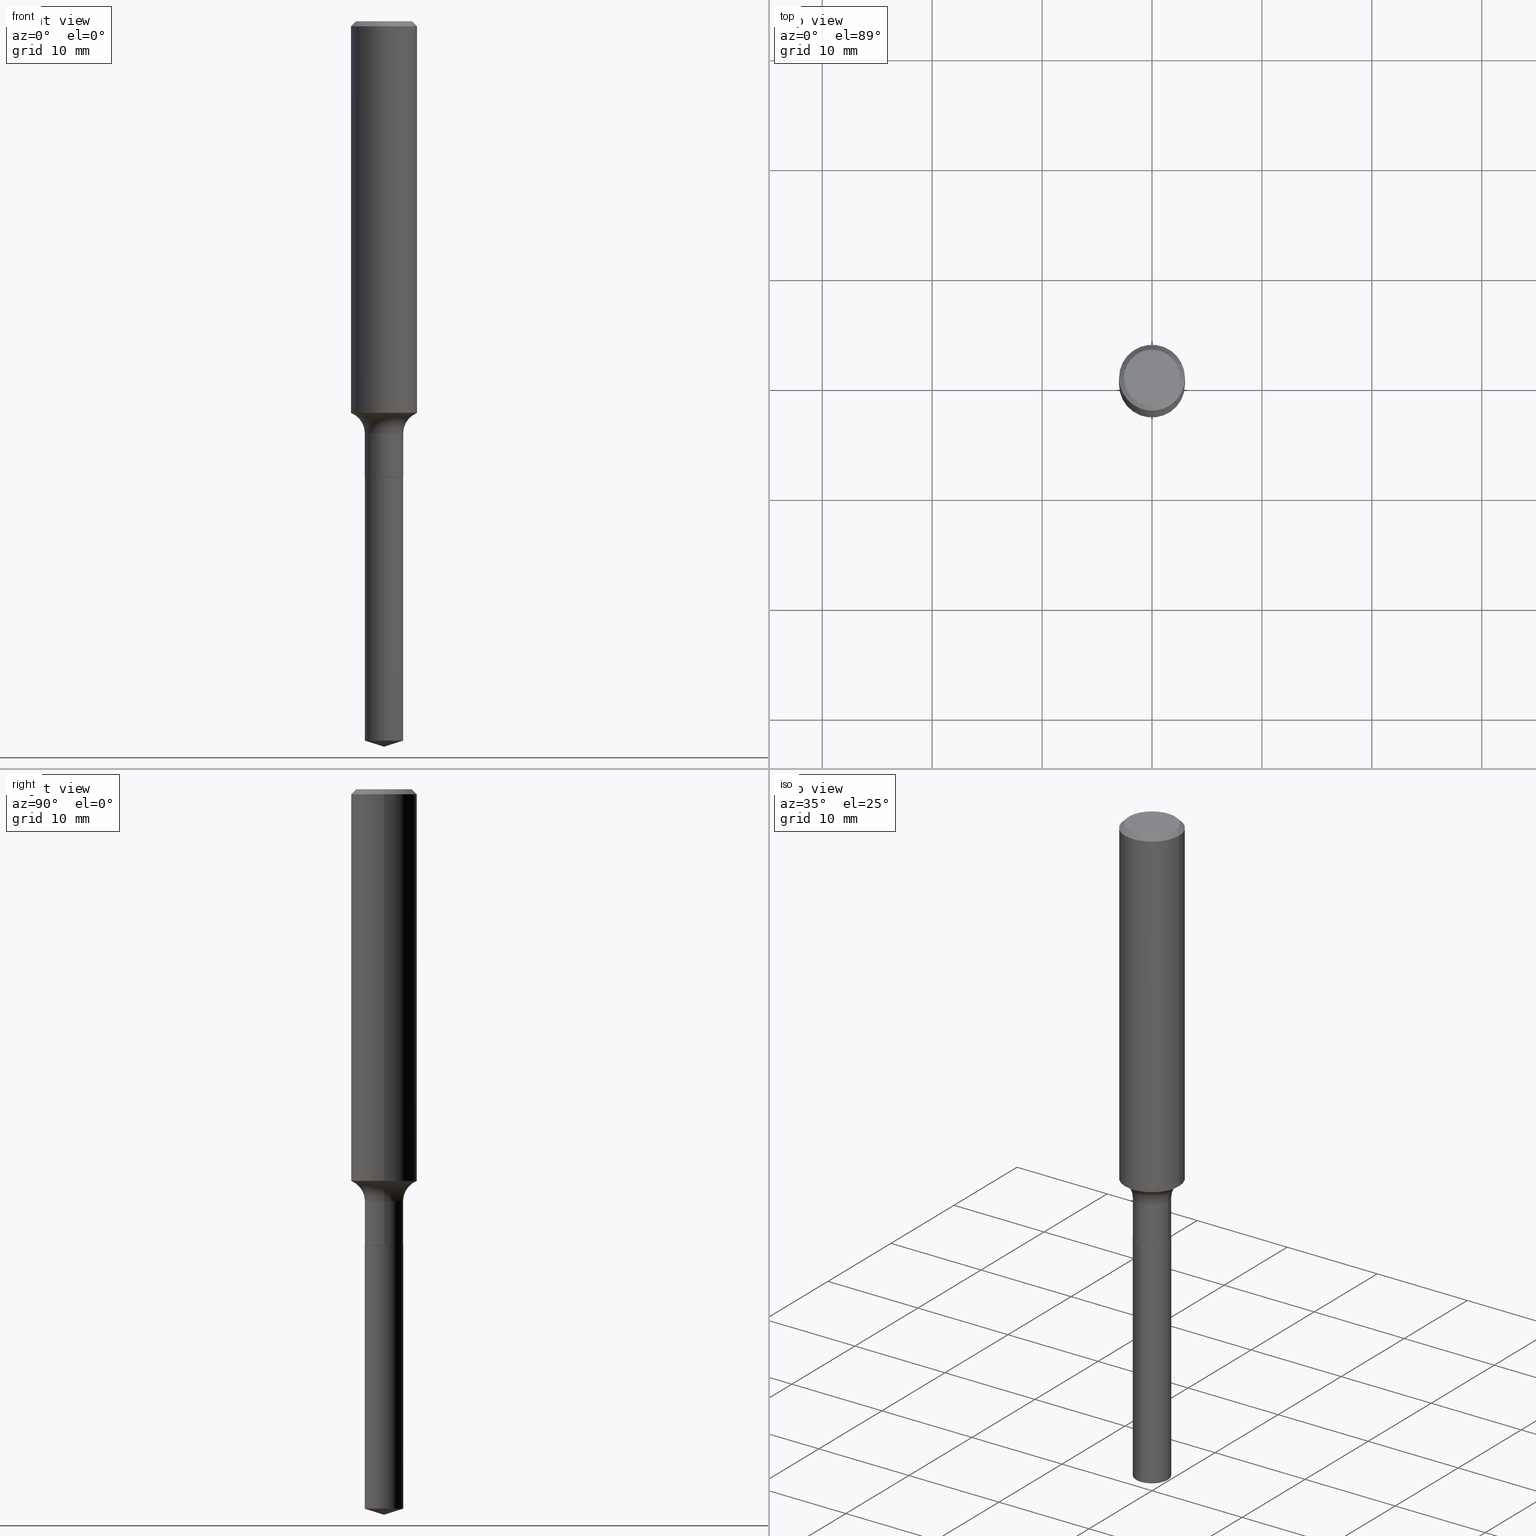
[diagram: canonical four-view strip — front | top / right | iso, engineering-drawing reading convention]
A machine part, canonical four-view strip (front | top / right | iso — engineering-drawing reading convention). The complete STEP part file that produces these views, byte-faithful:
ISO-10303-21;
HEADER;
FILE_DESCRIPTION (( 'STEP AP203' ),
    '1' );
FILE_NAME ('64105.STEP',
    '2024-04-19T15:13:07',
    ( '' ),
    ( '' ),
    'SwSTEP 2.0',
    'SolidWorks 2023',
    '' );
FILE_SCHEMA (( 'CONFIG_CONTROL_DESIGN' ));
ENDSEC;

DATA;
#1 = CIRCLE ( 'NONE', #396, 0.06890000000000000291 ) ;
#2 = EDGE_CURVE ( 'NONE', #52, #279, #387, .T. ) ;
#3 = DIRECTION ( 'NONE',  ( 1.000000000000000000, -6.982962677686266711E-15, 0.000000000000000000 ) ) ;
#4 = PERSON_AND_ORGANIZATION ( #319, #243 ) ;
#5 = CARTESIAN_POINT ( 'NONE',  ( 0.06840000000000000246, -6.182016858555670618E-15, -1.633799999999999919 ) ) ;
#6 = APPROVAL_STATUS ( 'not_yet_approved' ) ;
#7 = ORIENTED_EDGE ( 'NONE', *, *, #2, .F. ) ;
#8 = CARTESIAN_POINT ( 'NONE',  ( -4.811261284925203338E-16, -0.06890000000000895408, -2.576675913446237143 ) ) ;
#9 = APPLICATION_PROTOCOL_DEFINITION ( 'international standard', 'config_control_design', 1994, #472 ) ;
#10 = CARTESIAN_POINT ( 'NONE',  ( -0.1181000000000000799, 8.391509709326788873E-16, -5.809262341591047988E-30 ) ) ;
#11 = ADVANCED_FACE ( 'NONE', ( #386 ), #452, .F. ) ;
#12 = UNCERTAINTY_MEASURE_WITH_UNIT (LENGTH_MEASURE( 1.000000000000000082E-05 ), #119, 'distance_accuracy_value', 'NONE');
#13 = DIRECTION ( 'NONE',  ( -2.455360489333348875E-29, 3.477315885575264806E-15, 1.000000000000000000 ) ) ;
#14 = ORIENTED_EDGE ( 'NONE', *, *, #2, .T. ) ;
#15 = FACE_OUTER_BOUND ( 'NONE', #226, .T. ) ;
#16 = AXIS2_PLACEMENT_3D ( 'NONE', #29, #449, #252 ) ;
#17 = AXIS2_PLACEMENT_3D ( 'NONE', #141, #171, #293 ) ;
#18 = EDGE_CURVE ( 'NONE', #122, #67, #118, .T. ) ;
#19 = EDGE_CURVE ( 'NONE', #122, #435, #184, .T. ) ;
#20 = CARTESIAN_POINT ( 'NONE',  ( -0.06840000000000000246, -5.218370980142022032E-15, -1.633799999999999919 ) ) ;
#21 = ORIENTED_EDGE ( 'NONE', *, *, #86, .T. ) ;
#22 = ORIENTED_EDGE ( 'NONE', *, *, #202, .F. ) ;
#23 = CARTESIAN_POINT ( 'NONE',  ( 3.995406935545275904E-29, -5.704382211401930676E-15, -1.633799999999999919 ) ) ;
#24 = CARTESIAN_POINT ( 'NONE',  ( 3.006365662761078129E-46, -4.292293396963677838E-32, -1.229361689324070654E-17 ) ) ;
#25 = ADVANCED_FACE ( 'NONE', ( #307 ), #186, .F. ) ;
#26 = AXIS2_PLACEMENT_3D ( 'NONE', #203, #277, #100 ) ;
#27 = AXIS2_PLACEMENT_3D ( 'NONE', #87, #183, #45 ) ;
#28 = CARTESIAN_POINT ( 'NONE',  ( -0.1003850000000000020, 7.319105043583384717E-16, -1.229361689324571704E-17 ) ) ;
#29 = CARTESIAN_POINT ( 'NONE',  ( 3.995406935545275904E-29, -5.704382211401930676E-15, -1.633799999999999919 ) ) ;
#30 = ORIENTED_EDGE ( 'NONE', *, *, #75, .T. ) ;
#31 = DIRECTION ( 'NONE',  ( -6.982962677686265922E-15, -1.000000000000000000, 0.000000000000000000 ) ) ;
#32 = APPROVAL ( #6, 'UNSPECIFIED' ) ;
#33 = EDGE_CURVE ( 'NONE', #35, #94, #116, .T. ) ;
#34 = CIRCLE ( 'NONE', #291, 0.06890000000000000291 ) ;
#35 = VERTEX_POINT ( 'NONE', #459 ) ;
#36 = DIRECTION ( 'NONE',  ( -2.445468806185136597E-29, 3.491481338843145583E-15, 1.000000000000000000 ) ) ;
#37 = FACE_OUTER_BOUND ( 'NONE', #129, .T. ) ;
#38 = DIRECTION ( 'NONE',  ( -2.445468806185136597E-29, 3.491481338843145583E-15, 1.000000000000000000 ) ) ;
#39 = EDGE_CURVE ( 'NONE', #52, #132, #120, .T. ) ;
#40 = ADVANCED_FACE ( 'NONE', ( #125 ), #344, .T. ) ;
#41 = AXIS2_PLACEMENT_3D ( 'NONE', #93, #444, #165 ) ;
#42 = CALENDAR_DATE ( 2024, 19, 4 ) ;
#43 = LOCAL_TIME ( 11, 13, 7.000000000000000000, #381 ) ;
#44 = DIRECTION ( 'NONE',  ( -2.445468806185136597E-29, 3.491481338843145583E-15, 1.000000000000000000 ) ) ;
#45 = DIRECTION ( 'NONE',  ( 1.000000000000000000, 0.000000000000000000, 0.000000000000000000 ) ) ;
#46 = CARTESIAN_POINT ( 'NONE',  ( 3.607800129764931825E-29, -5.150982419195292745E-15, -1.475300000000000056 ) ) ;
#47 = DIRECTION ( 'NONE',  ( -6.659769872151610789E-15, -0.9537169507482237130, 0.3007057995042833887 ) ) ;
#48 = EDGE_CURVE ( 'NONE', #160, #231, #391, .T. ) ;
#49 = APPROVAL_STATUS ( 'not_yet_approved' ) ;
#50 = CARTESIAN_POINT ( 'NONE',  ( 6.380292121830646430E-29, -9.035457597078766752E-15, -2.598399999999999821 ) ) ;
#51 = VECTOR ( 'NONE', #54, 39.37007874015748143 ) ;
#52 = VERTEX_POINT ( 'NONE', #269 ) ;
#53 = PERSON_AND_ORGANIZATION ( #319, #243 ) ;
#54 = DIRECTION ( 'NONE',  ( -2.445468806185136877E-29, 3.491481338843145188E-15, 1.000000000000000000 ) ) ;
#55 = PRODUCT_DEFINITION_SHAPE ( 'NONE', 'NONE',  #445 ) ;
#56 = ORIENTED_EDGE ( 'NONE', *, *, #297, .T. ) ;
#57 = DIRECTION ( 'NONE',  ( -2.455360489333348875E-29, 3.477315885575264806E-15, 1.000000000000000000 ) ) ;
#58 = CC_DESIGN_PERSON_AND_ORGANIZATION_ASSIGNMENT ( #347, #228, ( #445 ) ) ;
#59 = DIRECTION ( 'NONE',  ( 0.7071067811866259545, -2.468850131083078659E-15, 0.7071067811864690800 ) ) ;
#60 = VECTOR ( 'NONE', #198, 39.37007874015748143 ) ;
#61 = EDGE_LOOP ( 'NONE', ( #30, #175, #359, #69 ) ) ;
#62 = LINE ( 'NONE', #247, #487 ) ;
#63 = CC_DESIGN_PERSON_AND_ORGANIZATION_ASSIGNMENT ( #121, #306, ( #389 ) ) ;
#64 = DIRECTION ( 'NONE',  ( -2.445468806185136597E-29, 3.491481338843145583E-15, 1.000000000000000000 ) ) ;
#65 = ORIENTED_EDGE ( 'NONE', *, *, #351, .F. ) ;
#66 = CARTESIAN_POINT ( 'NONE',  ( 0.06890000000000000291, -6.183762599225093699E-15, -1.633299999999999974 ) ) ;
#67 = VERTEX_POINT ( 'NONE', #8 ) ;
#68 = VECTOR ( 'NONE', #113, 39.37007874015748143 ) ;
#69 = ORIENTED_EDGE ( 'NONE', *, *, #39, .F. ) ;
#70 = DIRECTION ( 'NONE',  ( 1.000000000000000000, -6.982962677686265922E-15, 0.000000000000000000 ) ) ;
#71 = CYLINDRICAL_SURFACE ( 'NONE', #92, 0.1181000000000000799 ) ;
#72 = MANIFOLD_SOLID_BREP ( 'Body-Move/Copy2[2]', #303 ) ;
#73 = DIRECTION ( 'NONE',  ( 1.000000000000000000, -6.982962677686265922E-15, 0.000000000000000000 ) ) ;
#74 = FACE_OUTER_BOUND ( 'NONE', #236, .T. ) ;
#75 = EDGE_CURVE ( 'NONE', #52, #160, #180, .T. ) ;
#76 = EDGE_LOOP ( 'NONE', ( #468, #349, #368, #258 ) ) ;
#77 = CARTESIAN_POINT ( 'NONE',  ( 3.994184201142184223E-29, -5.702636470732509961E-15, -1.633299999999999974 ) ) ;
#78 = APPROVAL_STATUS ( 'not_yet_approved' ) ;
#79 = DIRECTION ( 'NONE',  ( -2.445468806185136597E-29, 3.491481338843145583E-15, 1.000000000000000000 ) ) ;
#80 = CONICAL_SURFACE ( 'NONE', #463, 0.1180999999999999966, 0.7853981633974453924 ) ;
#81 = ORIENTED_EDGE ( 'NONE', *, *, #123, .F. ) ;
#82 = DATE_AND_TIME ( #343, #211 ) ;
#83 = CYLINDRICAL_SURFACE ( 'NONE', #470, 0.06890000000000000291 ) ;
#84 = MANIFOLD_SOLID_BREP ( 'Body-Move/Copy2[1]', #356 ) ;
#85 = CARTESIAN_POINT ( 'NONE',  ( 0.000000000000000000, 0.000000000000000000, 0.000000000000000000 ) ) ;
#86 = EDGE_CURVE ( 'NONE', #430, #300, #230, .T. ) ;
#87 = CARTESIAN_POINT ( 'NONE',  ( 0.000000000000000000, 0.000000000000000000, 0.000000000000000000 ) ) ;
#88 = DIRECTION ( 'NONE',  ( 1.000000000000000000, -6.982962677686270655E-15, 0.000000000000000000 ) ) ;
#89 = COORDINATED_UNIVERSAL_TIME_OFFSET ( 5, 0, .BEHIND. ) ;
#90 = DIRECTION ( 'NONE',  ( 6.776566513254236049E-15, 0.9537169507482258224, 0.3007057995042767273 ) ) ;
#91 = CIRCLE ( 'NONE', #492, 0.06889999999999998903 ) ;
#92 = AXIS2_PLACEMENT_3D ( 'NONE', #408, #410, #177 ) ;
#93 = CARTESIAN_POINT ( 'NONE',  ( 4.332147990156998495E-31, -6.185159191760674092E-17, -0.01771500000000011954 ) ) ;
#94 = VERTEX_POINT ( 'NONE', #5 ) ;
#95 = CARTESIAN_POINT ( 'NONE',  ( -9.030388813696932618E-28, 1.278435991048707932E-13, 36.77167874015748339 ) ) ;
#96 = ORIENTED_EDGE ( 'NONE', *, *, #142, .F. ) ;
#97 = DIRECTION ( 'NONE',  ( -2.455360489333348875E-29, 3.477315885575264806E-15, 1.000000000000000000 ) ) ;
#98 = CIRCLE ( 'NONE', #395, 0.06840000000000000246 ) ;
#99 = ORIENTED_EDGE ( 'NONE', *, *, #215, .T. ) ;
#100 = DIRECTION ( 'NONE',  ( -1.000000000000000000, 6.982962677686265922E-15, -4.876176775795935793E-29 ) ) ;
#101 = CARTESIAN_POINT ( 'NONE',  ( -0.1468999999999999750, -4.107195140363705355E-15, -1.475300000000000056 ) ) ;
#102 = CARTESIAN_POINT ( 'NONE',  ( 3.994184201142184223E-29, -5.702636470732509961E-15, -1.633299999999999974 ) ) ;
#103 = AXIS2_PLACEMENT_3D ( 'NONE', #221, #195, #88 ) ;
#104 = CC_DESIGN_SECURITY_CLASSIFICATION ( #367, ( #389 ) ) ;
#105 = EDGE_CURVE ( 'NONE', #397, #279, #241, .T. ) ;
#106 = CARTESIAN_POINT ( 'NONE',  ( 0.1180999999999999966, -8.720764054544246253E-16, -0.01771500000000011954 ) ) ;
#107 = DIRECTION ( 'NONE',  ( -2.445468806185136597E-29, 3.491481338843145583E-15, 1.000000000000000000 ) ) ;
#108 = ADVANCED_FACE ( 'NONE', ( #467 ), #263, .T. ) ;
#109 =( GEOMETRIC_REPRESENTATION_CONTEXT ( 3 ) GLOBAL_UNCERTAINTY_ASSIGNED_CONTEXT ( ( #12 ) ) GLOBAL_UNIT_ASSIGNED_CONTEXT ( ( #119, #418, #270 ) ) REPRESENTATION_CONTEXT ( 'NONE', 'WORKASPACE' ) );
#110 = LINE ( 'NONE', #106, #290 ) ;
#111 = ORIENTED_EDGE ( 'NONE', *, *, #297, .F. ) ;
#112 = DATE_TIME_ROLE ( 'creation_date' ) ;
#113 = DIRECTION ( 'NONE',  ( -2.445468806185136877E-29, 3.491481338843145188E-15, 1.000000000000000000 ) ) ;
#114 = EDGE_LOOP ( 'NONE', ( #237, #197, #278, #443 ) ) ;
#115 = PRODUCT ( '64105', '64105', '', ( #383 ) ) ;
#116 = CIRCLE ( 'NONE', #256, 0.06840000000000000246 ) ;
#117 = LENGTH_MEASURE_WITH_UNIT ( LENGTH_MEASURE( 0.02539999999999999897 ), #289 );
#118 = LINE ( 'NONE', #192, #455 ) ;
#119 =( CONVERSION_BASED_UNIT ( 'INCH', #117 ) LENGTH_UNIT ( ) NAMED_UNIT ( #423 ) );
#120 = LINE ( 'NONE', #422, #68 ) ;
#121 = PERSON_AND_ORGANIZATION ( #319, #243 ) ;
#122 = VERTEX_POINT ( 'NONE', #469 ) ;
#123 = EDGE_CURVE ( 'NONE', #231, #132, #411, .T. ) ;
#124 = CONICAL_SURFACE ( 'NONE', #402, 124.8659371009107133, 1.265363707695881690 ) ;
#125 = FACE_OUTER_BOUND ( 'NONE', #61, .T. ) ;
#126 = CIRCLE ( 'NONE', #134, 0.1003850000000000020 ) ;
#127 = ORIENTED_EDGE ( 'NONE', *, *, #139, .T. ) ;
#128 = FACE_OUTER_BOUND ( 'NONE', #354, .T. ) ;
#129 = EDGE_LOOP ( 'NONE', ( #196, #276, #244, #7 ) ) ;
#130 = ORIENTED_EDGE ( 'NONE', *, *, #254, .F. ) ;
#131 = DIRECTION ( 'NONE',  ( -2.445468806185136597E-29, 3.491481338843145583E-15, 1.000000000000000000 ) ) ;
#132 = VERTEX_POINT ( 'NONE', #299 ) ;
#133 = CARTESIAN_POINT ( 'NONE',  ( 6.310507199765257766E-29, -8.983059603354820077E-15, -2.576675913446237143 ) ) ;
#134 = AXIS2_PLACEMENT_3D ( 'NONE', #24, #131, #286 ) ;
#135 = ADVANCED_FACE ( 'NONE', ( #419 ), #83, .T. ) ;
#136 = APPROVAL_PERSON_ORGANIZATION ( #185, #374, #262 ) ;
#137 = CARTESIAN_POINT ( 'NONE',  ( 3.995406935545275904E-29, -5.704382211401930676E-15, -1.633799999999999919 ) ) ;
#138 = LINE ( 'NONE', #490, #224 ) ;
#139 = EDGE_CURVE ( 'NONE', #94, #35, #98, .T. ) ;
#140 = CARTESIAN_POINT ( 'NONE',  ( 0.000000000000000000, 0.000000000000000000, 0.000000000000000000 ) ) ;
#141 = CARTESIAN_POINT ( 'NONE',  ( 3.995406935545275904E-29, -5.704382211401930676E-15, -1.633799999999999919 ) ) ;
#142 = EDGE_CURVE ( 'NONE', #300, #231, #62, .T. ) ;
#143 = CARTESIAN_POINT ( 'NONE',  ( 0.1003850000000000020, -7.803837484803599345E-16, -1.229361689323552810E-17 ) ) ;
#144 = AXIS2_PLACEMENT_3D ( 'NONE', #155, #271, #429 ) ;
#145 = AXIS2_PLACEMENT_3D ( 'NONE', #437, #284, #208 ) ;
#146 = ORIENTED_EDGE ( 'NONE', *, *, #142, .T. ) ;
#147 = COORDINATED_UNIVERSAL_TIME_OFFSET ( 5, 0, .BEHIND. ) ;
#148 = DATE_AND_TIME ( #385, #403 ) ;
#149 = CARTESIAN_POINT ( 'NONE',  ( 4.332147990156998495E-31, -6.185159191760674092E-17, -0.01771500000000011954 ) ) ;
#150 = ORIENTED_EDGE ( 'NONE', *, *, #86, .F. ) ;
#151 = PERSON_AND_ORGANIZATION ( #319, #243 ) ;
#152 = DIRECTION ( 'NONE',  ( -2.445468806185136597E-29, 3.491481338843145583E-15, 1.000000000000000000 ) ) ;
#153 = AXIS2_PLACEMENT_3D ( 'NONE', #85, #79, #161 ) ;
#154 = PERSON_AND_ORGANIZATION_ROLE ( 'design_supplier' ) ;
#155 = CARTESIAN_POINT ( 'NONE',  ( 0.1468999999999999750, -6.176779636547406107E-15, -1.475300000000000056 ) ) ;
#156 = ORIENTED_EDGE ( 'NONE', *, *, #352, .F. ) ;
#157 = DATE_AND_TIME ( #464, #190 ) ;
#158 = DIRECTION ( 'NONE',  ( 1.000000000000000000, -6.982962677686267499E-15, 0.000000000000000000 ) ) ;
#159 = ADVANCED_FACE ( 'NONE', ( #235 ), #168, .F. ) ;
#160 = VERTEX_POINT ( 'NONE', #401 ) ;
#161 = DIRECTION ( 'NONE',  ( 1.000000000000000000, -6.982962677686266711E-15, 4.876176775795936353E-29 ) ) ;
#162 = EDGE_LOOP ( 'NONE', ( #127, #399, #321, #460 ) ) ;
#163 = DIRECTION ( 'NONE',  ( -0.7071067811865454633, 2.468850131082235367E-15, -0.7071067811865495711 ) ) ;
#164 = DIRECTION ( 'NONE',  ( -6.982962677686265922E-15, -1.000000000000000000, 0.000000000000000000 ) ) ;
#165 = DIRECTION ( 'NONE',  ( -1.000000000000000000, 6.982962677686266711E-15, 0.000000000000000000 ) ) ;
#166 = DIRECTION ( 'NONE',  ( -2.445468806185136877E-29, 3.491481338843145188E-15, 1.000000000000000000 ) ) ;
#167 = VECTOR ( 'NONE', #166, 39.37007874015748143 ) ;
#168 = PLANE ( 'NONE',  #26 ) ;
#169 = ADVANCED_FACE ( 'NONE', ( #273 ), #283, .T. ) ;
#170 = DIRECTION ( 'NONE',  ( -2.445468806185136877E-29, 3.491481338843145188E-15, 1.000000000000000000 ) ) ;
#171 = DIRECTION ( 'NONE',  ( -2.438088387897960049E-29, 3.491481338843145188E-15, 1.000000000000000000 ) ) ;
#172 = ORIENTED_EDGE ( 'NONE', *, *, #261, .T. ) ;
#173 = CIRCLE ( 'NONE', #388, 0.07800000000000006928 ) ;
#174 = DIRECTION ( 'NONE',  ( -2.445468806185136597E-29, 3.491481338843145583E-15, 1.000000000000000000 ) ) ;
#175 = ORIENTED_EDGE ( 'NONE', *, *, #48, .T. ) ;
#176 = EDGE_LOOP ( 'NONE', ( #240, #431 ) ) ;
#177 = DIRECTION ( 'NONE',  ( 1.000000000000000000, -6.982962677686266711E-15, 4.876176775795936353E-29 ) ) ;
#178 = EDGE_CURVE ( 'NONE', #94, #207, #355, .T. ) ;
#179 = FACE_OUTER_BOUND ( 'NONE', #480, .T. ) ;
#180 = CIRCLE ( 'NONE', #103, 0.1181000000000001632 ) ;
#181 = APPROVAL_PERSON_ORGANIZATION ( #194, #191, #220 ) ;
#182 = ORIENTED_EDGE ( 'NONE', *, *, #261, .F. ) ;
#183 = DIRECTION ( 'NONE',  ( 0.000000000000000000, 0.000000000000000000, 1.000000000000000000 ) ) ;
#184 = LINE ( 'NONE', #50, #462 ) ;
#185 = PERSON_AND_ORGANIZATION ( #319, #243 ) ;
#186 = PLANE ( 'NONE',  #357 ) ;
#187 = DIRECTION ( 'NONE',  ( -2.445468806185136597E-29, 3.491481338843145583E-15, 1.000000000000000000 ) ) ;
#188 = CIRCLE ( 'NONE', #264, 0.06890000000000000291 ) ;
#189 = APPLICATION_PROTOCOL_DEFINITION ( 'international standard', 'config_control_design', 1994, #206 ) ;
#190 = LOCAL_TIME ( 11, 13, 7.000000000000000000, #89 ) ;
#191 = APPROVAL ( #78, 'UNSPECIFIED' ) ;
#192 = CARTESIAN_POINT ( 'NONE',  ( 6.347686631628673953E-29, -9.081744632176895477E-15, -2.598399999999999821 ) ) ;
#193 = EDGE_LOOP ( 'NONE', ( #377, #414, #14, #56 ) ) ;
#194 = PERSON_AND_ORGANIZATION ( #319, #243 ) ;
#195 = DIRECTION ( 'NONE',  ( -2.445468806185136597E-29, 3.491481338843145583E-15, 1.000000000000000000 ) ) ;
#196 = ORIENTED_EDGE ( 'NONE', *, *, #370, .F. ) ;
#197 = ORIENTED_EDGE ( 'NONE', *, *, #352, .T. ) ;
#198 = DIRECTION ( 'NONE',  ( -2.455360489333348595E-29, 3.477315885575264806E-15, 1.000000000000000000 ) ) ;
#199 = DIRECTION ( 'NONE',  ( -6.982962677686265922E-15, -1.000000000000000000, 3.500519750498826311E-15 ) ) ;
#200 = CC_DESIGN_APPROVAL ( #32, ( #389 ) ) ;
#201 = CC_DESIGN_PERSON_AND_ORGANIZATION_ASSIGNMENT ( #53, #458, ( #115 ) ) ;
#202 = EDGE_CURVE ( 'NONE', #300, #430, #126, .T. ) ;
#203 = CARTESIAN_POINT ( 'NONE',  ( 1.503182831380539065E-46, -2.146146698481838919E-32, -6.146808446620353272E-18 ) ) ;
#204 = ORIENTED_EDGE ( 'NONE', *, *, #19, .F. ) ;
#205 = DIRECTION ( 'NONE',  ( 1.000000000000000000, -6.982962677686258822E-15, 0.000000000000000000 ) ) ;
#206 = APPLICATION_CONTEXT ( 'configuration controlled 3d designs of mechanical parts and assemblies' ) ;
#207 = VERTEX_POINT ( 'NONE', #66 ) ;
#208 = DIRECTION ( 'NONE',  ( 1.000000000000000000, -6.982962677686267499E-15, 0.000000000000000000 ) ) ;
#209 = EDGE_CURVE ( 'NONE', #67, #433, #484, .T. ) ;
#210 = VECTOR ( 'NONE', #477, 39.37007874015748143 ) ;
#211 = LOCAL_TIME ( 11, 13, 7.000000000000000000, #266 ) ;
#212 = LINE ( 'NONE', #369, #456 ) ;
#213 = CARTESIAN_POINT ( 'NONE',  ( 4.332147990156998495E-31, -6.185159191760674092E-17, -0.01771500000000011954 ) ) ;
#214 = DIRECTION ( 'NONE',  ( -1.000000000000000000, 6.982962677686266711E-15, 0.000000000000000000 ) ) ;
#215 = EDGE_CURVE ( 'NONE', #433, #298, #188, .T. ) ;
#216 = FACE_OUTER_BOUND ( 'NONE', #162, .T. ) ;
#217 = ORIENTED_EDGE ( 'NONE', *, *, #342, .T. ) ;
#218 = CARTESIAN_POINT ( 'NONE',  ( 3.430532145968479544E-29, -4.897890719217663237E-15, -1.402811656109412830 ) ) ;
#219 = EDGE_LOOP ( 'NONE', ( #339, #280, #111, #315 ) ) ;
#220 = APPROVAL_ROLE ( '' ) ;
#221 = CARTESIAN_POINT ( 'NONE',  ( 3.430532145968479544E-29, -4.897890719217663237E-15, -1.402811656109412830 ) ) ;
#222 = ADVANCED_FACE ( 'NONE', ( #15 ), #326, .T. ) ;
#223 = EDGE_CURVE ( 'NONE', #160, #397, #173, .T. ) ;
#224 = VECTOR ( 'NONE', #409, 39.37007874015748143 ) ;
#225 = CARTESIAN_POINT ( 'NONE',  ( 0.000000000000000000, 0.000000000000000000, 0.000000000000000000 ) ) ;
#226 = EDGE_LOOP ( 'NONE', ( #407, #22, #146, #436 ) ) ;
#227 = CARTESIAN_POINT ( 'NONE',  ( 3.995406935545275904E-29, -5.704382211401930676E-15, -1.633799999999999919 ) ) ;
#228 = PERSON_AND_ORGANIZATION_ROLE ( 'creator' ) ;
#229 = CARTESIAN_POINT ( 'NONE',  ( 3.006365662761078129E-46, -4.292293396963677838E-32, -1.229361689324070654E-17 ) ) ;
#230 = CIRCLE ( 'NONE', #482, 0.1003850000000000020 ) ;
#231 = VERTEX_POINT ( 'NONE', #362 ) ;
#232 = PERSON_AND_ORGANIZATION ( #319, #243 ) ;
#233 = AXIS2_PLACEMENT_3D ( 'NONE', #323, #486, #31 ) ;
#234 = DIRECTION ( 'NONE',  ( 6.982962677686265922E-15, 1.000000000000000000, -3.477315885575264806E-15 ) ) ;
#235 = FACE_OUTER_BOUND ( 'NONE', #390, .T. ) ;
#236 = EDGE_LOOP ( 'NONE', ( #150, #217, #471, #96 ) ) ;
#237 = ORIENTED_EDGE ( 'NONE', *, *, #246, .F. ) ;
#238 = DIRECTION ( 'NONE',  ( -2.455360489333348875E-29, 3.477315885575264806E-15, 1.000000000000000000 ) ) ;
#239 = CC_DESIGN_PERSON_AND_ORGANIZATION_ASSIGNMENT ( #4, #424, ( #367 ) ) ;
#240 = ORIENTED_EDGE ( 'NONE', *, *, #139, .F. ) ;
#241 = CIRCLE ( 'NONE', #249, 0.06889999999999998903 ) ;
#242 = DIRECTION ( 'NONE',  ( -6.982962677686265922E-15, -1.000000000000000000, 3.964946289788480896E-15 ) ) ;
#243 = ORGANIZATION ( 'UNSPECIFIED', 'UNSPECIFIED', '' ) ;
#244 = ORIENTED_EDGE ( 'NONE', *, *, #105, .T. ) ;
#245 = DIRECTION ( 'NONE',  ( 7.105427357601001859E-15, 1.000000000000000000, -3.491481338843145583E-15 ) ) ;
#246 = EDGE_CURVE ( 'NONE', #427, #397, #317, .T. ) ;
#247 = CARTESIAN_POINT ( 'NONE',  ( -0.1180999999999999966, 7.628363003171412752E-16, -0.01771500000000011954 ) ) ;
#248 = DIRECTION ( 'NONE',  ( -2.445468806185136597E-29, 3.491481338843145583E-15, 1.000000000000000000 ) ) ;
#249 = AXIS2_PLACEMENT_3D ( 'NONE', #350, #380, #158 ) ;
#250 = AXIS2_PLACEMENT_3D ( 'NONE', #140, #107, #251 ) ;
#251 = DIRECTION ( 'NONE',  ( 1.000000000000000000, -6.982962677686265922E-15, 4.876176775795934672E-29 ) ) ;
#252 = DIRECTION ( 'NONE',  ( -6.982962677686265922E-15, -1.000000000000000000, 3.964946289788480896E-15 ) ) ;
#253 = CC_DESIGN_DATE_AND_TIME_ASSIGNMENT ( #148, #428, ( #367 ) ) ;
#254 = EDGE_CURVE ( 'NONE', #298, #433, #296, .T. ) ;
#255 = DIRECTION ( 'NONE',  ( -2.445468806185136597E-29, 3.491481338843145583E-15, 1.000000000000000000 ) ) ;
#256 = AXIS2_PLACEMENT_3D ( 'NONE', #348, #187, #461 ) ;
#257 = LOCAL_TIME ( 11, 13, 7.000000000000000000, #147 ) ;
#258 = ORIENTED_EDGE ( 'NONE', *, *, #209, .F. ) ;
#259 = DIRECTION ( 'NONE',  ( -2.445468806185136597E-29, 3.491481338843145583E-15, 1.000000000000000000 ) ) ;
#260 = CC_DESIGN_DATE_AND_TIME_ASSIGNMENT ( #157, #112, ( #445 ) ) ;
#261 = EDGE_CURVE ( 'NONE', #435, #67, #91, .T. ) ;
#262 = APPROVAL_ROLE ( '' ) ;
#263 = CYLINDRICAL_SURFACE ( 'NONE', #304, 0.06890000000000000291 ) ;
#264 = AXIS2_PLACEMENT_3D ( 'NONE', #23, #238, #242 ) ;
#265 = CIRCLE ( 'NONE', #327, 0.1181000000000001632 ) ;
#266 = COORDINATED_UNIVERSAL_TIME_OFFSET ( 5, 0, .BEHIND. ) ;
#267 = DIRECTION ( 'NONE',  ( 2.455360489333348315E-29, -3.477315885575264806E-15, -1.000000000000000000 ) ) ;
#268 = DATE_AND_TIME ( #491, #43 ) ;
#269 = CARTESIAN_POINT ( 'NONE',  ( 0.1181000000000002603, -5.722578611452413077E-15, -1.402811656109412830 ) ) ;
#270 =( NAMED_UNIT ( * ) SI_UNIT ( $, .STERADIAN. ) SOLID_ANGLE_UNIT ( ) );
#271 = DIRECTION ( 'NONE',  ( -6.982962677686266711E-15, -1.000000000000000000, 3.491481338843145583E-15 ) ) ;
#272 = AXIS2_PLACEMENT_3D ( 'NONE', #281, #434, #320 ) ;
#273 = FACE_OUTER_BOUND ( 'NONE', #478, .T. ) ;
#274 = ORIENTED_EDGE ( 'NONE', *, *, #370, .T. ) ;
#275 = ADVANCED_FACE ( 'NONE', ( #128 ), #365, .T. ) ;
#276 = ORIENTED_EDGE ( 'NONE', *, *, #223, .T. ) ;
#277 = DIRECTION ( 'NONE',  ( 2.438088387897960049E-29, -3.491481338843145188E-15, -1.000000000000000000 ) ) ;
#278 = ORIENTED_EDGE ( 'NONE', *, *, #451, .T. ) ;
#279 = VERTEX_POINT ( 'NONE', #366 ) ;
#280 = ORIENTED_EDGE ( 'NONE', *, *, #246, .T. ) ;
#281 = CARTESIAN_POINT ( 'NONE',  ( -9.030388813696932618E-28, 1.278435991048707932E-13, 36.77167874015748339 ) ) ;
#282 = EDGE_LOOP ( 'NONE', ( #65, #172, #475, #130 ) ) ;
#283 = CONICAL_SURFACE ( 'NONE', #345, 0.06840000000000000246, 0.7853981633975591903 ) ;
#284 = DIRECTION ( 'NONE',  ( -2.445468806185136597E-29, 3.491481338843145583E-15, 1.000000000000000000 ) ) ;
#285 = CONICAL_SURFACE ( 'NONE', #346, 0.06840000000000000246, 0.7853981633975591903 ) ;
#286 = DIRECTION ( 'NONE',  ( 1.000000000000000000, -6.982962677686266711E-15, 4.875668750515086816E-29 ) ) ;
#287 = DIRECTION ( 'NONE',  ( 1.000000000000000000, -6.982962677686258822E-15, 0.000000000000000000 ) ) ;
#288 = ORIENTED_EDGE ( 'NONE', *, *, #254, .T. ) ;
#289 =( LENGTH_UNIT ( ) NAMED_UNIT ( * ) SI_UNIT ( $, .METRE. ) );
#290 = VECTOR ( 'NONE', #376, 39.37007874015748143 ) ;
#291 = AXIS2_PLACEMENT_3D ( 'NONE', #102, #248, #70 ) ;
#292 = CARTESIAN_POINT ( 'NONE',  ( 4.332147990156998495E-31, -6.185159191760674092E-17, -0.01771500000000011954 ) ) ;
#293 = DIRECTION ( 'NONE',  ( 1.000000000000000000, -6.982962677686265922E-15, 4.876176775795935793E-29 ) ) ;
#294 = CARTESIAN_POINT ( 'NONE',  ( 3.995406935545275904E-29, -5.704382211401930676E-15, -1.633799999999999919 ) ) ;
#295 = AXIS2_PLACEMENT_3D ( 'NONE', #46, #465, #425 ) ;
#296 = CIRCLE ( 'NONE', #334, 0.06890000000000000291 ) ;
#297 = EDGE_CURVE ( 'NONE', #279, #397, #447, .T. ) ;
#298 = VERTEX_POINT ( 'NONE', #318 ) ;
#299 = CARTESIAN_POINT ( 'NONE',  ( 0.1180999999999999966, -8.865394841523548556E-16, -0.01771500000000011954 ) ) ;
#300 = VERTEX_POINT ( 'NONE', #28 ) ;
#301 = APPROVAL_ROLE ( '' ) ;
#302 = DIRECTION ( 'NONE',  ( 1.000000000000000000, -6.982962677686265922E-15, 4.876176775795934672E-29 ) ) ;
#303 = CLOSED_SHELL ( 'NONE', ( #363, #331, #40, #375, #135, #413, #11, #426, #222, #159, #382, #169 ) ) ;
#304 = AXIS2_PLACEMENT_3D ( 'NONE', #311, #13, #313 ) ;
#305 = AXIS2_PLACEMENT_3D ( 'NONE', #404, #174, #328 ) ;
#306 = PERSON_AND_ORGANIZATION_ROLE ( 'creator' ) ;
#307 = FACE_OUTER_BOUND ( 'NONE', #453, .T. ) ;
#308 = ADVANCED_FACE ( 'NONE', ( #481 ), #124, .T. ) ;
#309 = ORIENTED_EDGE ( 'NONE', *, *, #18, .T. ) ;
#310 = APPROVAL_DATE_TIME ( #268, #32 ) ;
#311 = CARTESIAN_POINT ( 'NONE',  ( 3.995406935545275904E-29, -5.704382211401930676E-15, -1.633799999999999919 ) ) ;
#312 = ORIENTED_EDGE ( 'NONE', *, *, #39, .T. ) ;
#313 = DIRECTION ( 'NONE',  ( -6.982962677686265922E-15, -1.000000000000000000, 3.964946289788480896E-15 ) ) ;
#314 = EDGE_CURVE ( 'NONE', #35, #427, #360, .T. ) ;
#315 = ORIENTED_EDGE ( 'NONE', *, *, #451, .F. ) ;
#316 = DIRECTION ( 'NONE',  ( -1.000000000000000000, 7.105427357601005014E-15, 0.000000000000000000 ) ) ;
#317 = LINE ( 'NONE', #322, #167 ) ;
#318 = CARTESIAN_POINT ( 'NONE',  ( 4.895639449387722562E-16, 0.06889999999999431302, -1.633800000000000141 ) ) ;
#319 = PERSON ( 'UNSPECIFIED', 'UNSPECIFIED', 'UNSPECIFIED', ('UNSPECIFIED'), ('UNSPECIFIED'), ('UNSPECIFIED') ) ;
#320 = DIRECTION ( 'NONE',  ( -6.982962677686265922E-15, -1.000000000000000000, 3.500519750498826311E-15 ) ) ;
#321 = ORIENTED_EDGE ( 'NONE', *, *, #438, .F. ) ;
#322 = CARTESIAN_POINT ( 'NONE',  ( -0.06890000000000000291, 4.895639449387090487E-16, -3.389146277185630017E-30 ) ) ;
#323 = CARTESIAN_POINT ( 'NONE',  ( 6.310507199765257766E-29, -8.983059603354820077E-15, -2.576675913446237143 ) ) ;
#324 = ADVANCED_FACE ( 'NONE', ( #442 ), #372, .T. ) ;
#325 = DIRECTION ( 'NONE',  ( 1.000000000000000000, -6.982962677686266711E-15, 0.000000000000000000 ) ) ;
#326 = CONICAL_SURFACE ( 'NONE', #41, 0.1180999999999999966, 0.7853981633974453924 ) ;
#327 = AXIS2_PLACEMENT_3D ( 'NONE', #218, #259, #448 ) ;
#328 = DIRECTION ( 'NONE',  ( 1.000000000000000000, -6.982962677686268288E-15, 4.883557194083113462E-29 ) ) ;
#329 = ORIENTED_EDGE ( 'NONE', *, *, #178, .T. ) ;
#330 = PLANE ( 'NONE',  #17 ) ;
#331 = ADVANCED_FACE ( 'NONE', ( #74 ), #80, .T. ) ;
#332 = ORIENTED_EDGE ( 'NONE', *, *, #18, .F. ) ;
#333 = DIRECTION ( 'NONE',  ( 2.445468806185136597E-29, -3.491481338843145583E-15, -1.000000000000000000 ) ) ;
#334 = AXIS2_PLACEMENT_3D ( 'NONE', #398, #57, #473 ) ;
#335 = VECTOR ( 'NONE', #59, 39.37007874015748143 ) ;
#336 = CC_DESIGN_APPROVAL ( #191, ( #367 ) ) ;
#337 = DATE_AND_TIME ( #42, #257 ) ;
#338 = DIRECTION ( 'NONE',  ( -2.445468806185136597E-29, 3.491481338843145583E-15, 1.000000000000000000 ) ) ;
#339 = ORIENTED_EDGE ( 'NONE', *, *, #438, .T. ) ;
#340 = SECURITY_CLASSIFICATION_LEVEL ( 'unclassified' ) ;
#341 = DIRECTION ( 'NONE',  ( 1.000000000000000000, -6.982962677686266711E-15, 4.875668750515086816E-29 ) ) ;
#342 = EDGE_CURVE ( 'NONE', #430, #132, #110, .T. ) ;
#343 = CALENDAR_DATE ( 2024, 19, 4 ) ;
#344 = CYLINDRICAL_SURFACE ( 'NONE', #153, 0.1181000000000000799 ) ;
#345 = AXIS2_PLACEMENT_3D ( 'NONE', #364, #392, #485 ) ;
#346 = AXIS2_PLACEMENT_3D ( 'NONE', #294, #36, #287 ) ;
#347 = PERSON_AND_ORGANIZATION ( #319, #243 ) ;
#348 = CARTESIAN_POINT ( 'NONE',  ( 3.995406935545275904E-29, -5.704382211401930676E-15, -1.633799999999999919 ) ) ;
#349 = ORIENTED_EDGE ( 'NONE', *, *, #351, .T. ) ;
#350 = CARTESIAN_POINT ( 'NONE',  ( 3.607800129764931825E-29, -5.150982419195292745E-15, -1.475300000000000056 ) ) ;
#351 = EDGE_CURVE ( 'NONE', #435, #298, #138, .T. ) ;
#352 = EDGE_CURVE ( 'NONE', #427, #207, #1, .T. ) ;
#353 = DESIGN_CONTEXT ( 'detailed design', #206, 'design' ) ;
#354 = EDGE_LOOP ( 'NONE', ( #332, #457, #441 ) ) ;
#355 = LINE ( 'NONE', #432, #335 ) ;
#356 = CLOSED_SHELL ( 'NONE', ( #108, #275, #308, #324, #25 ) ) ;
#357 = AXIS2_PLACEMENT_3D ( 'NONE', #227, #267, #234 ) ;
#358 = TOROIDAL_SURFACE ( 'NONE', #305, 0.1468999999999999750, 0.07800000000000006928 ) ;
#359 = ORIENTED_EDGE ( 'NONE', *, *, #420, .F. ) ;
#360 = LINE ( 'NONE', #20, #210 ) ;
#361 = EDGE_LOOP ( 'NONE', ( #204, #309, #182 ) ) ;
#362 = CARTESIAN_POINT ( 'NONE',  ( -0.1180999999999999966, -1.640720184634955534E-15, -0.01771500000000011954 ) ) ;
#363 = ADVANCED_FACE ( 'NONE', ( #216 ), #285, .T. ) ;
#364 = CARTESIAN_POINT ( 'NONE',  ( 3.995406935545275904E-29, -5.704382211401930676E-15, -1.633799999999999919 ) ) ;
#365 = CONICAL_SURFACE ( 'NONE', #272, 124.8659371009107133, 1.265363707695881690 ) ;
#366 = CARTESIAN_POINT ( 'NONE',  ( 0.06889999999999998903, -5.632108547687876483E-15, -1.475300000000000056 ) ) ;
#367 = SECURITY_CLASSIFICATION ( '', '', #340 ) ;
#368 = ORIENTED_EDGE ( 'NONE', *, *, #215, .F. ) ;
#369 = CARTESIAN_POINT ( 'NONE',  ( 0.06890000000000000291, -4.811261284925837385E-16, 3.359685798523399268E-30 ) ) ;
#370 = EDGE_CURVE ( 'NONE', #160, #52, #265, .T. ) ;
#371 = CYLINDRICAL_SURFACE ( 'NONE', #250, 0.06890000000000000291 ) ;
#372 = CYLINDRICAL_SURFACE ( 'NONE', #16, 0.06890000000000000291 ) ;
#373 = CIRCLE ( 'NONE', #233, 0.06889999999999998903 ) ;
#374 = APPROVAL ( #49, 'UNSPECIFIED' ) ;
#375 = ADVANCED_FACE ( 'NONE', ( #37 ), #358, .F. ) ;
#376 = DIRECTION ( 'NONE',  ( 0.7071067811865454633, -7.319954787623248157E-15, -0.7071067811865495711 ) ) ;
#377 = ORIENTED_EDGE ( 'NONE', *, *, #223, .F. ) ;
#378 = FACE_OUTER_BOUND ( 'NONE', #114, .T. ) ;
#379 = APPROVAL_DATE_TIME ( #82, #374 ) ;
#380 = DIRECTION ( 'NONE',  ( -2.445468806185136597E-29, 3.491481338843145583E-15, 1.000000000000000000 ) ) ;
#381 = COORDINATED_UNIVERSAL_TIME_OFFSET ( 5, 0, .BEHIND. ) ;
#382 = ADVANCED_FACE ( 'NONE', ( #488 ), #330, .F. ) ;
#383 = MECHANICAL_CONTEXT ( 'NONE', #472, 'mechanical' ) ;
#384 = ORIENTED_EDGE ( 'NONE', *, *, #202, .T. ) ;
#385 = CALENDAR_DATE ( 2024, 19, 4 ) ;
#386 = FACE_OUTER_BOUND ( 'NONE', #193, .T. ) ;
#387 = CIRCLE ( 'NONE', #144, 0.07800000000000006928 ) ;
#388 = AXIS2_PLACEMENT_3D ( 'NONE', #101, #245, #316 ) ;
#389 = PRODUCT_DEFINITION_FORMATION_WITH_SPECIFIED_SOURCE ( 'ANY', '', #115, .NOT_KNOWN. ) ;
#390 = EDGE_LOOP ( 'NONE', ( #384, #21 ) ) ;
#391 = LINE ( 'NONE', #10, #51 ) ;
#392 = DIRECTION ( 'NONE',  ( -2.445468806185136597E-29, 3.491481338843145583E-15, 1.000000000000000000 ) ) ;
#393 = SHAPE_DEFINITION_REPRESENTATION ( #55, #479 ) ;
#394 = DIRECTION ( 'NONE',  ( -2.455360489333348875E-29, 3.477315885575264806E-15, 1.000000000000000000 ) ) ;
#395 = AXIS2_PLACEMENT_3D ( 'NONE', #137, #64, #205 ) ;
#396 = AXIS2_PLACEMENT_3D ( 'NONE', #77, #38, #73 ) ;
#397 = VERTEX_POINT ( 'NONE', #450 ) ;
#398 = CARTESIAN_POINT ( 'NONE',  ( 3.995406935545275904E-29, -5.704382211401930676E-15, -1.633799999999999919 ) ) ;
#399 = ORIENTED_EDGE ( 'NONE', *, *, #314, .T. ) ;
#400 = CARTESIAN_POINT ( 'NONE',  ( -4.811261284925437038E-16, -0.06890000000000570668, -1.633799999999999697 ) ) ;
#401 = CARTESIAN_POINT ( 'NONE',  ( -0.1181000000000002603, -4.058739748284982673E-15, -1.402811656109412830 ) ) ;
#402 = AXIS2_PLACEMENT_3D ( 'NONE', #95, #394, #199 ) ;
#403 = LOCAL_TIME ( 11, 13, 7.000000000000000000, #416 ) ;
#404 = CARTESIAN_POINT ( 'NONE',  ( 3.607800129764931825E-29, -5.150982419195292745E-15, -1.475300000000000056 ) ) ;
#405 = CIRCLE ( 'NONE', #421, 0.1180999999999999966 ) ;
#406 = CC_DESIGN_PERSON_AND_ORGANIZATION_ASSIGNMENT ( #151, #154, ( #389 ) ) ;
#407 = ORIENTED_EDGE ( 'NONE', *, *, #342, .F. ) ;
#408 = CARTESIAN_POINT ( 'NONE',  ( 0.000000000000000000, 0.000000000000000000, 0.000000000000000000 ) ) ;
#409 = DIRECTION ( 'NONE',  ( -2.455360489333348595E-29, 3.477315885575264806E-15, 1.000000000000000000 ) ) ;
#410 = DIRECTION ( 'NONE',  ( -2.445468806185136597E-29, 3.491481338843145583E-15, 1.000000000000000000 ) ) ;
#411 = CIRCLE ( 'NONE', #439, 0.1180999999999999966 ) ;
#412 = CC_DESIGN_APPROVAL ( #374, ( #445 ) ) ;
#413 = ADVANCED_FACE ( 'NONE', ( #378 ), #371, .T. ) ;
#414 = ORIENTED_EDGE ( 'NONE', *, *, #75, .F. ) ;
#415 = CARTESIAN_POINT ( 'NONE',  ( 4.895639449387718618E-16, 0.06889999999999096847, -2.576675913446237143 ) ) ;
#416 = COORDINATED_UNIVERSAL_TIME_OFFSET ( 5, 0, .BEHIND. ) ;
#417 = ORIENTED_EDGE ( 'NONE', *, *, #48, .F. ) ;
#418 =( NAMED_UNIT ( * ) PLANE_ANGLE_UNIT ( ) SI_UNIT ( $, .RADIAN. ) );
#419 = FACE_OUTER_BOUND ( 'NONE', #219, .T. ) ;
#420 = EDGE_CURVE ( 'NONE', #132, #231, #405, .T. ) ;
#421 = AXIS2_PLACEMENT_3D ( 'NONE', #213, #255, #325 ) ;
#422 = CARTESIAN_POINT ( 'NONE',  ( 0.1181000000000000799, -8.246878922347486570E-16, 5.758764772215004644E-30 ) ) ;
#423 = DIMENSIONAL_EXPONENTS ( 1.000000000000000000, 0.000000000000000000, 0.000000000000000000, 0.000000000000000000, 0.000000000000000000, 0.000000000000000000, 0.000000000000000000 ) ;
#424 = PERSON_AND_ORGANIZATION_ROLE ( 'classification_officer' ) ;
#425 = DIRECTION ( 'NONE',  ( 1.000000000000000000, -6.982962677686268288E-15, 4.883557194083113462E-29 ) ) ;
#426 = ADVANCED_FACE ( 'NONE', ( #179 ), #71, .T. ) ;
#427 = VERTEX_POINT ( 'NONE', #446 ) ;
#428 = DATE_TIME_ROLE ( 'classification_date' ) ;
#429 = DIRECTION ( 'NONE',  ( 1.000000000000000000, -6.982962677686264344E-15, 0.000000000000000000 ) ) ;
#430 = VERTEX_POINT ( 'NONE', #143 ) ;
#431 = ORIENTED_EDGE ( 'NONE', *, *, #33, .F. ) ;
#432 = CARTESIAN_POINT ( 'NONE',  ( 0.06840000000000000246, -6.182016858555670618E-15, -1.633799999999999919 ) ) ;
#433 = VERTEX_POINT ( 'NONE', #454 ) ;
#434 = DIRECTION ( 'NONE',  ( -2.455360489333348875E-29, 3.477315885575264806E-15, 1.000000000000000000 ) ) ;
#435 = VERTEX_POINT ( 'NONE', #415 ) ;
#436 = ORIENTED_EDGE ( 'NONE', *, *, #123, .T. ) ;
#437 = CARTESIAN_POINT ( 'NONE',  ( 3.607800129764931825E-29, -5.150982419195292745E-15, -1.475300000000000056 ) ) ;
#438 = EDGE_CURVE ( 'NONE', #207, #427, #34, .T. ) ;
#439 = AXIS2_PLACEMENT_3D ( 'NONE', #149, #44, #3 ) ;
#440 = ORIENTED_EDGE ( 'NONE', *, *, #314, .F. ) ;
#441 = ORIENTED_EDGE ( 'NONE', *, *, #489, .F. ) ;
#442 = FACE_OUTER_BOUND ( 'NONE', #282, .T. ) ;
#443 = ORIENTED_EDGE ( 'NONE', *, *, #105, .F. ) ;
#444 = DIRECTION ( 'NONE',  ( 2.445468806185136597E-29, -3.491481338843145583E-15, -1.000000000000000000 ) ) ;
#445 = PRODUCT_DEFINITION ( 'UNKNOWN', '', #389, #353 ) ;
#446 = CARTESIAN_POINT ( 'NONE',  ( -0.06890000000000001679, -4.937245500025191811E-15, -1.633299999999999974 ) ) ;
#447 = CIRCLE ( 'NONE', #145, 0.06889999999999998903 ) ;
#448 = DIRECTION ( 'NONE',  ( 1.000000000000000000, -6.982962677686270655E-15, 0.000000000000000000 ) ) ;
#449 = DIRECTION ( 'NONE',  ( -2.455360489333348875E-29, 3.477315885575264806E-15, 1.000000000000000000 ) ) ;
#450 = CARTESIAN_POINT ( 'NONE',  ( -0.06889999999999998903, -4.937245500025191811E-15, -1.475300000000000056 ) ) ;
#451 = EDGE_CURVE ( 'NONE', #207, #279, #212, .T. ) ;
#452 = TOROIDAL_SURFACE ( 'NONE', #295, 0.1468999999999999750, 0.07800000000000006928 ) ;
#453 = EDGE_LOOP ( 'NONE', ( #99, #288 ) ) ;
#454 = CARTESIAN_POINT ( 'NONE',  ( -4.811261284925438024E-16, -0.06890000000000570668, -1.633799999999999697 ) ) ;
#455 = VECTOR ( 'NONE', #47, 39.37007874015748143 ) ;
#456 = VECTOR ( 'NONE', #170, 39.37007874015748143 ) ;
#457 = ORIENTED_EDGE ( 'NONE', *, *, #19, .T. ) ;
#458 = PERSON_AND_ORGANIZATION_ROLE ( 'design_owner' ) ;
#459 = CARTESIAN_POINT ( 'NONE',  ( -0.06840000000000000246, -5.215721752967910831E-15, -1.633799999999999919 ) ) ;
#460 = ORIENTED_EDGE ( 'NONE', *, *, #178, .F. ) ;
#461 = DIRECTION ( 'NONE',  ( 1.000000000000000000, -6.982962677686258822E-15, 0.000000000000000000 ) ) ;
#462 = VECTOR ( 'NONE', #90, 39.37007874015748854 ) ;
#463 = AXIS2_PLACEMENT_3D ( 'NONE', #292, #333, #214 ) ;
#464 = CALENDAR_DATE ( 2024, 19, 4 ) ;
#465 = DIRECTION ( 'NONE',  ( -2.445468806185136597E-29, 3.491481338843145583E-15, 1.000000000000000000 ) ) ;
#466 = PRODUCT_RELATED_PRODUCT_CATEGORY ( 'detail', '', ( #115 ) ) ;
#467 = FACE_OUTER_BOUND ( 'NONE', #76, .T. ) ;
#468 = ORIENTED_EDGE ( 'NONE', *, *, #489, .T. ) ;
#469 = CARTESIAN_POINT ( 'NONE',  ( 6.380008695483772988E-29, -9.035457597078766752E-15, -2.598399999999999821 ) ) ;
#470 = AXIS2_PLACEMENT_3D ( 'NONE', #225, #152, #302 ) ;
#471 = ORIENTED_EDGE ( 'NONE', *, *, #420, .T. ) ;
#472 = APPLICATION_CONTEXT ( 'configuration controlled 3d designs of mechanical parts and assemblies' ) ;
#473 = DIRECTION ( 'NONE',  ( -6.982962677686265922E-15, -1.000000000000000000, 3.964946289788480896E-15 ) ) ;
#474 = ORIENTED_EDGE ( 'NONE', *, *, #33, .T. ) ;
#475 = ORIENTED_EDGE ( 'NONE', *, *, #209, .T. ) ;
#476 = APPROVAL_DATE_TIME ( #337, #191 ) ;
#477 = DIRECTION ( 'NONE',  ( -0.7071067811866259545, 7.493145998870638150E-15, 0.7071067811864690800 ) ) ;
#478 = EDGE_LOOP ( 'NONE', ( #440, #474, #329, #156 ) ) ;
#479 = ADVANCED_BREP_SHAPE_REPRESENTATION ( '64105', ( #84, #72, #27 ), #109 ) ;
#480 = EDGE_LOOP ( 'NONE', ( #417, #274, #312, #81 ) ) ;
#481 = FACE_OUTER_BOUND ( 'NONE', #361, .T. ) ;
#482 = AXIS2_PLACEMENT_3D ( 'NONE', #229, #338, #341 ) ;
#483 = APPROVAL_PERSON_ORGANIZATION ( #232, #32, #301 ) ;
#484 = LINE ( 'NONE', #400, #60 ) ;
#485 = DIRECTION ( 'NONE',  ( 1.000000000000000000, -6.982962677686258822E-15, 0.000000000000000000 ) ) ;
#486 = DIRECTION ( 'NONE',  ( -2.455360489333348875E-29, 3.477315885575264806E-15, 1.000000000000000000 ) ) ;
#487 = VECTOR ( 'NONE', #163, 39.37007874015748143 ) ;
#488 = FACE_OUTER_BOUND ( 'NONE', #176, .T. ) ;
#489 = EDGE_CURVE ( 'NONE', #67, #435, #373, .T. ) ;
#490 = CARTESIAN_POINT ( 'NONE',  ( 4.895639449387488862E-16, 0.06889999999999429914, -1.633800000000000141 ) ) ;
#491 = CALENDAR_DATE ( 2024, 19, 4 ) ;
#492 = AXIS2_PLACEMENT_3D ( 'NONE', #133, #97, #164 ) ;
ENDSEC;
END-ISO-10303-21;
